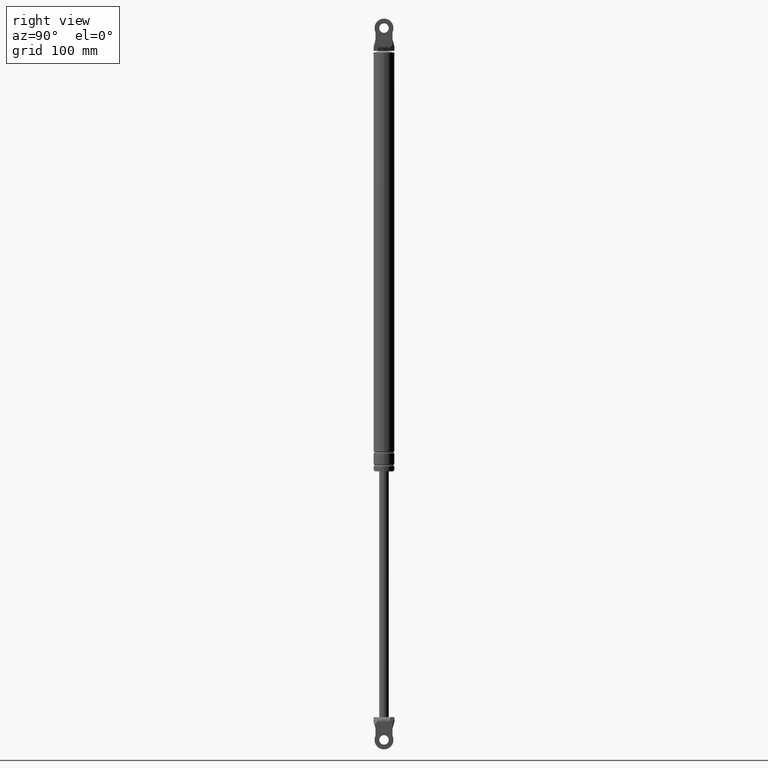
[diagram: clean part render]
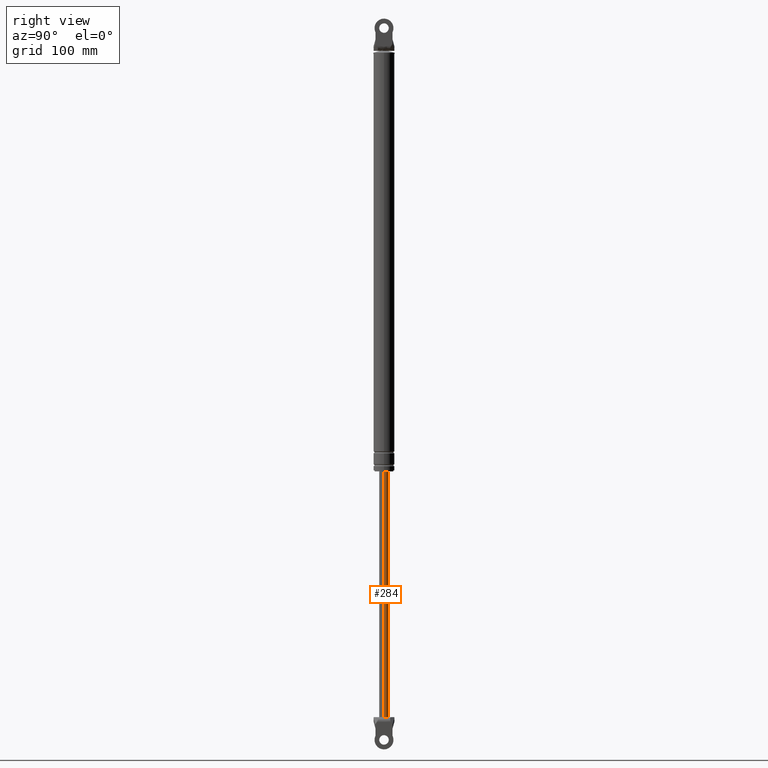
[diagram: same view with one face highlighted and labeled with its STEP entity id]
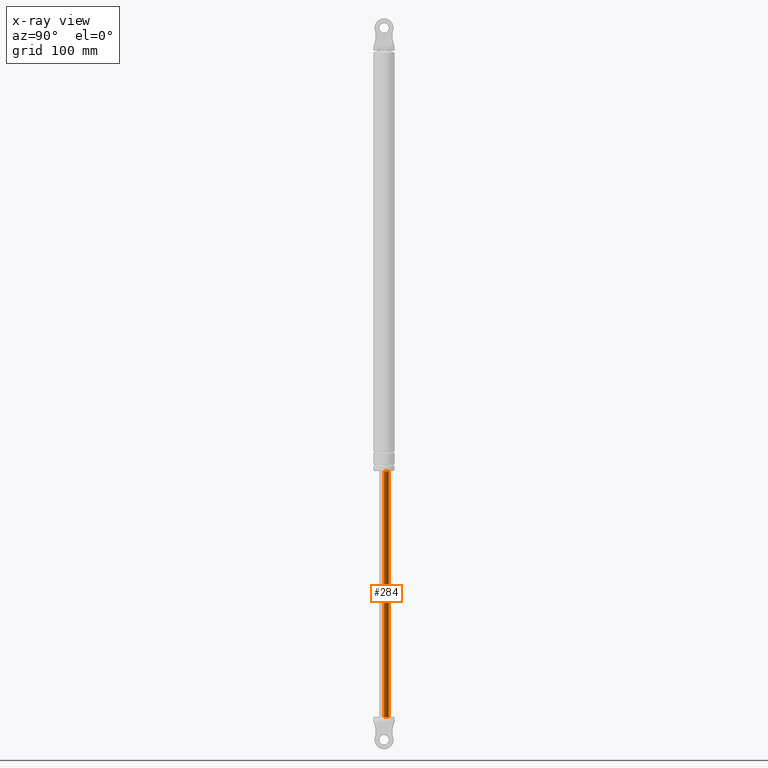
[diagram: x-ray of the same camera — body ghosted, the highlighted face saturated]
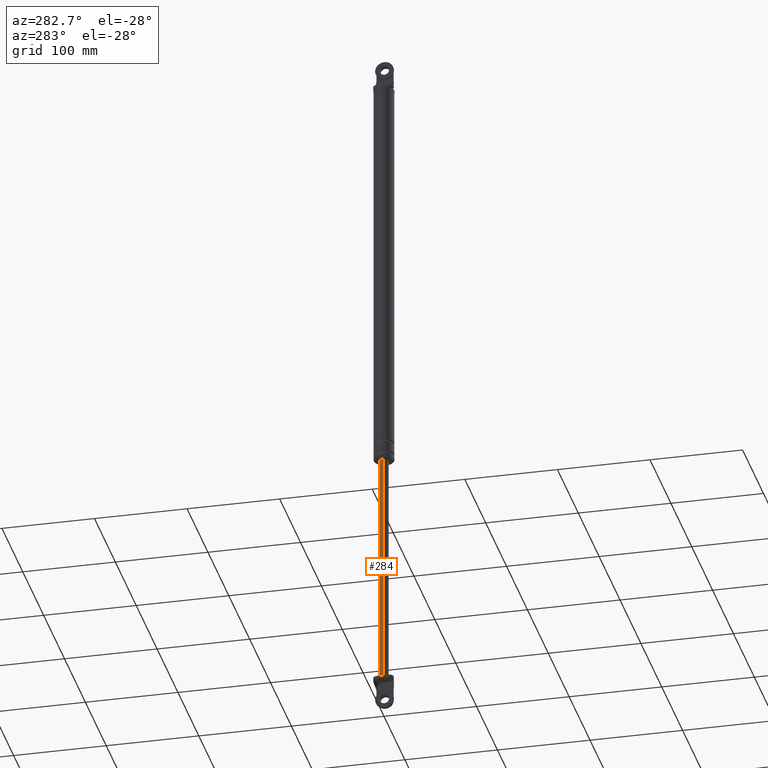
[diagram: same view with one face highlighted and labeled with its STEP entity id]
A machine part, right view. The second image highlights one B-rep face of the part: STEP entity #284.
The next image is the same camera in x-ray: the body ghosted, the highlighted face saturated — about 0% of this face is hidden behind the body in this view.
A second angle (auxiliary view) of the same face is appended — the face is thin or edge-on in the first view.
In plain terms, the highlighted cylindrical surface (edge-blend (fillet) strip) has radius 5 mm, axis along (0, 0, 1).
Its self-contained STEP definition (entity closure, byte-faithful):
#284=ADVANCED_FACE('',(#1098),#1097,.T.);
#1097=CYLINDRICAL_SURFACE('',#1757,5.00000000000E+000);
#1098=FACE_OUTER_BOUND('',#1758,.T.);
#1754=CARTESIAN_POINT('',(0.00000000000E+000,3.58204186421E-014,0.00000000000E+000));
#1755=DIRECTION('',(-0.00000000000E+000,-0.00000000000E+000,1.00000000000E+000));
#1756=DIRECTION('',(1.00000000000E+000,0.00000000000E+000,0.00000000000E+000));
#1757=AXIS2_PLACEMENT_3D('',#1754,#1755,#1756);
#1758=EDGE_LOOP('',(#2148,#2149,#2150,#2151,#2152));
#2148=ORIENTED_EDGE('',*,*,#2350,.F.);
#2149=ORIENTED_EDGE('',*,*,#2353,.F.);
#2150=ORIENTED_EDGE('',*,*,#2337,.F.);
#2151=ORIENTED_EDGE('',*,*,#2347,.F.);
#2152=ORIENTED_EDGE('',*,*,#2354,.T.);
#2337=EDGE_CURVE('',#3302,#3549,#3550,.T.);
#2347=EDGE_CURVE('',#3606,#3302,#3613,.T.);
#2350=EDGE_CURVE('',#3626,#3625,#3633,.T.);
#2353=EDGE_CURVE('',#3549,#3626,#3651,.T.);
#2354=EDGE_CURVE('',#3606,#3625,#3657,.T.);
#3302=VERTEX_POINT('',#4250);
#3549=VERTEX_POINT('',#4392);
#3550=CIRCLE('',#4396,5.00000000000E+000);
#3606=VERTEX_POINT('',#4427);
#3613=CIRCLE('',#4435,5.00000000000E+000);
#3625=VERTEX_POINT('',#4439);
#3626=VERTEX_POINT('',#4440);
#3633=CIRCLE('',#4448,5.00000000000E+000);
#3651=(BOUNDED_CURVE() B_SPLINE_CURVE(1,(#4453,#4454),.UNSPECIFIED.,.F.,.F.) B_SPLINE_CURVE_WITH_KNOTS((2,2),(3.58422939668E-002,9.64157706128E-001),.UNSPECIFIED.) CURVE() GEOMETRIC_REPRESENTATION_ITEM() RATIONAL_B_SPLINE_CURVE((1.00000000000E+000,1.00000000000E+000)) REPRESENTATION_ITEM('') );
#3657=(BOUNDED_CURVE() B_SPLINE_CURVE(1,(#4455,#4456),.UNSPECIFIED.,.F.,.F.) B_SPLINE_CURVE_WITH_KNOTS((2,2),(3.58422939068E-002,9.64157706093E-001),.UNSPECIFIED.) CURVE() GEOMETRIC_REPRESENTATION_ITEM() RATIONAL_B_SPLINE_CURVE((7.50000000000E-001,7.50000000000E-001)) REPRESENTATION_ITEM('') );
#4250=CARTESIAN_POINT('',(2.00000000000E+000,4.58257569496E+000,-6.13000015000E+002));
#4392=CARTESIAN_POINT('',(5.00000000000E+000,1.01515834226E-011,-6.13000015000E+002));
#4393=CARTESIAN_POINT('',(0.00000000000E+000,3.58204186421E-014,-6.13000015000E+002));
#4394=DIRECTION('',(0.00000000000E+000,0.00000000000E+000,-1.00000000000E+000));
#4395=DIRECTION('',(4.00000000000E-001,9.16515138991E-001,0.00000000000E+000));
#4396=AXIS2_PLACEMENT_3D('',#4393,#4394,#4395);
#4427=CARTESIAN_POINT('',(-5.00000000000E+000,8.97827334275E-007,-6.13000015000E+002));
#4432=CARTESIAN_POINT('',(0.00000000000E+000,3.58204186421E-014,-6.13000015000E+002));
#4433=DIRECTION('',(0.00000000000E+000,0.00000000000E+000,-1.00000000000E+000));
#4434=DIRECTION('',(1.00000000000E+000,-0.00000000000E+000,-0.00000000000E+000));
#4435=AXIS2_PLACEMENT_3D('',#4432,#4433,#4434);
#4439=CARTESIAN_POINT('',(-5.00000000000E+000,3.58204186421E-014,-3.54000015000E+002));
#4440=CARTESIAN_POINT('',(5.00000000000E+000,3.61192557345E-014,-3.54000015000E+002));
#4445=CARTESIAN_POINT('',(0.00000000000E+000,3.58204186421E-014,-3.54000015000E+002));
#4446=DIRECTION('',(0.00000000000E+000,0.00000000000E+000,1.00000000000E+000));
#4447=DIRECTION('',(-1.00000000000E+000,-1.22460635382E-016,0.00000000000E+000));
#4448=AXIS2_PLACEMENT_3D('',#4445,#4446,#4447);
#4453=CARTESIAN_POINT('',(5.00000000000E+000,3.58204186421E-014,-6.13000014983E+002));
#4454=CARTESIAN_POINT('',(5.00000000000E+000,3.58204186421E-014,-3.54000014990E+002));
#4455=CARTESIAN_POINT('',(-5.00000000000E+000,3.55271367880E-014,-6.13000015000E+002));
#4456=CARTESIAN_POINT('',(-5.00000000000E+000,3.55271367880E-014,-3.54000015000E+002));